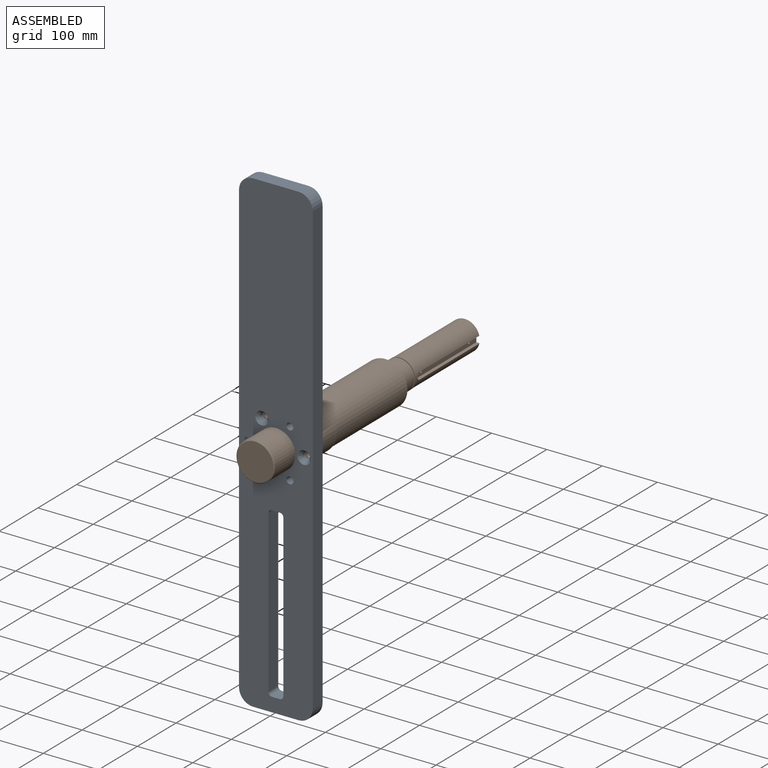
[diagram: assembled view]
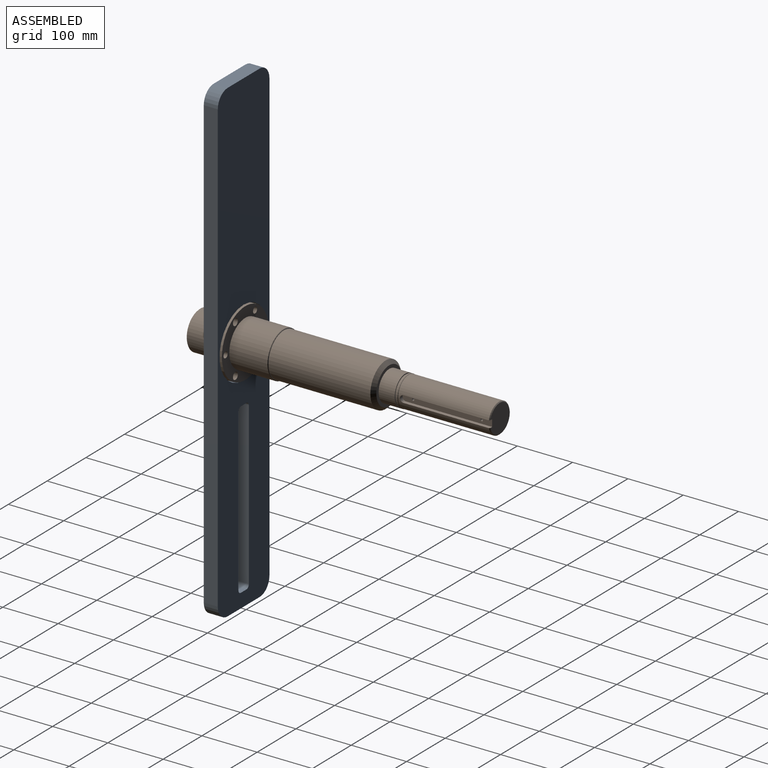
[diagram: assembled view, second angle]
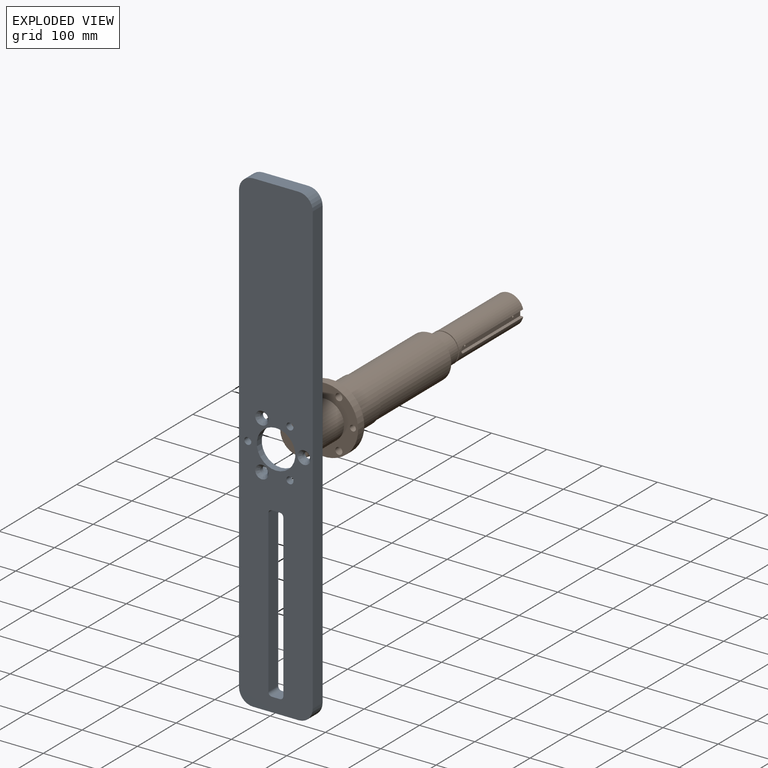
[diagram: exploded view]
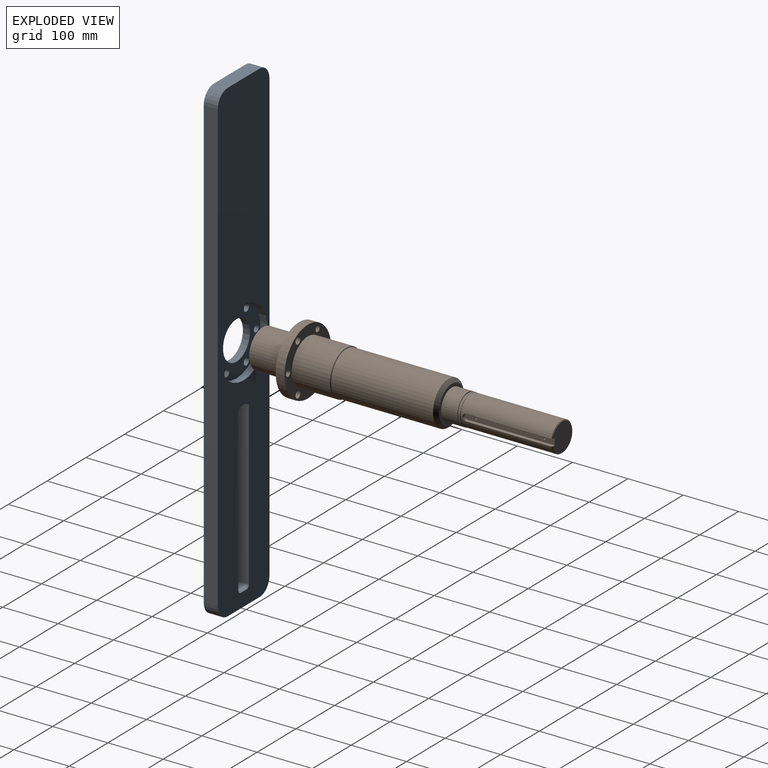
[diagram: exploded view, second angle]
ASSEMBLY  parts=2 mates=2
PART A: 30 faces, bbox 133.4x25.4x863.6 mm
  f0: cylinder r=6.35mm len=25.4mm, axis (0,1,0), area 253.4mm2, adj f1,f15,f16,f17
  f1: plane 25.4x14.22mm, normal (0,0,-1), area 361.3mm2, adj f0,f2,f16,f17
  f2: cylinder r=6.35mm len=25.4mm, axis (0,1,0), area 253.4mm2, adj f1,f3,f16,f17
  f3: plane 292.1x25.4mm, normal (-1,0,0), area 7419.3mm2, adj f2,f4,f16,f17
  f4: cylinder r=6.35mm len=25.4mm, axis (0,1,0), area 253.4mm2, adj f3,f5,f16,f17
  f5: plane 25.4x14.22mm, normal (0,0,1), area 361.3mm2, adj f4,f6,f16,f17
  f6: cylinder r=6.35mm len=25.4mm, axis (0,1,0), area 253.4mm2, adj f5,f15,f16,f17
  f7: plane 812.8x25.4mm, normal (-1,0,0), area 20645.1mm2, adj f8,f14,f16,f17
  f8: cylinder r=25.4mm len=25.4mm, axis (0,1,0), area 1013.4mm2, adj f7,f9,f16,f17
  f9: plane 82.55x25.4mm, normal (0,0,-1), area 2096.8mm2, adj f8,f10,f16,f17
  f10: cylinder r=25.4mm len=25.4mm, axis (0,1,0), area 1013.4mm2, adj f9,f11,f16,f17
  f11: plane 812.8x25.4mm, normal (1,0,0), area 20645.1mm2, adj f10,f12,f16,f17
  f12: cylinder r=25.4mm len=25.4mm, axis (0,1,0), area 1013.4mm2, adj f11,f13,f16,f17
  f13: plane 82.55x25.4mm, normal (0,0,1), area 2096.8mm2, adj f12,f14,f16,f17
  f14: cylinder r=25.4mm len=25.4mm, axis (0,1,0), area 1013.4mm2, adj f7,f13,f16,f17
  f15: plane 292.1x25.4mm, normal (1,0,0), area 7419.3mm2, adj f0,f6,f16,f17
  f16: plane 863.6x133.35mm, normal (0,-1,0), area 100899.9mm2, adj f0,f1,f2,f3,f4,f5,f6,f7
  f17: plane 863.6x133.35mm, normal (0,1,0), area 94393.2mm2, adj f0,f1,f2,f3,f4,f5,f6,f7
  f18: cylinder r=6.75mm len=13.49mm, axis (0,-1,0), area 286.4mm2, adj f19,f28
  f19: cone r=6.75mm half-angle=41deg, axis (0,-1,0), area 461.6mm2, adj f16,f18
  f20: cylinder r=6.75mm len=13.49mm, axis (0,-1,0), area 286.4mm2, adj f21,f28
  f21: cone r=6.75mm half-angle=41deg, axis (0,-1,0), area 461.6mm2, adj f16,f20
  f22: cylinder r=6.75mm len=13.49mm, axis (0,-1,0), area 286.4mm2, adj f23,f28
  f23: cone r=6.75mm half-angle=41deg, axis (0,-1,0), area 461.6mm2, adj f16,f22
  f24: cylinder r=6.35mm len=12.7mm, axis (0,-1,0), area 506.7mm2, adj f16,f28
  f25: cylinder r=6.35mm len=12.7mm, axis (0,-1,0), area 506.7mm2, adj f16,f28
  f26: cylinder r=6.35mm len=12.7mm, axis (0,-1,0), area 506.7mm2, adj f16,f28
  f27: cylinder r=61.91mm len=123.83mm, axis (0,1,0), area 4940.4mm2, adj f17,f28
  f28: plane 123.83x123.83mm, normal (0,1,0), area 7415.2mm2, adj f18,f20,f22,f24,f25,f26,f27,f29
  f29: cylinder r=34.86mm len=69.72mm, axis (0,1,0), area 2781.8mm2, adj f16,f28
PART B: 35 faces, bbox 120.7x542.9x120.7 mm
  f0: cylinder r=27.5mm len=54.99mm, axis (0,-1,0), area 5033.1mm2, adj f2,f19
  f1: cylinder r=39.69mm len=184.15mm, axis (0,-1,0), area 45920.4mm2, adj f4,f11
  f2: plane 66.68x66.68mm, normal (0,1,0), area 1116.5mm2, adj f0,f11
  f3: cylinder r=41.25mm len=82.5mm, axis (0,-1,0), area 17906.2mm2, adj f9,f33
  f4: plane 80.98x80.98mm, normal (0,1,0), area 201.5mm2, adj f1,f33
  f5: plane 66.55x66.55mm, normal (0,-1,0), area 3478.2mm2, adj f10
  f6: cylinder r=34.8mm len=69.6mm, axis (0,1,0), area 14244.8mm2, adj f7,f10
  f7: plane 120.65x120.65mm, normal (0,-1,0), area 6977.8mm2, adj f6,f8,f12,f13,f14,f15,f16,f17
  f8: cylinder r=60.32mm len=120.65mm, axis (0,1,0), area 6017.2mm2, adj f7,f9
  f9: plane 120.65x120.65mm, normal (0,1,0), area 5436.5mm2, adj f3,f8,f12,f13,f14,f15,f16,f17
  f10: cone r=33.27mm half-angle=45deg, axis (0,1,0), area 460.9mm2, adj f5,f6
  f11: cone r=39.69mm half-angle=45deg, axis (0,-1,0), area 2060.2mm2, adj f1,f2
  f12: cylinder r=6.35mm len=15.88mm, axis (0,-1,0), area 633.4mm2, adj f7,f9
  f13: cylinder r=6.35mm len=15.88mm, axis (0,-1,0), area 633.4mm2, adj f7,f9
  f14: cylinder r=6.35mm len=15.88mm, axis (0,-1,0), area 633.4mm2, adj f7,f9
  f15: cylinder r=5.36mm len=15.88mm, axis (0,-1,0), area 534.4mm2, adj f7,f9
  f16: cylinder r=5.36mm len=15.88mm, axis (0,-1,0), area 534.4mm2, adj f7,f9
  f17: cylinder r=5.36mm len=15.88mm, axis (0,-1,0), area 534.4mm2, adj f7,f9
  f18: plane 54.99x54.99mm, normal (0,-1,0), area 264.3mm2, adj f20,f28
  f19: plane 54.99x54.99mm, normal (0,1,0), area 264.3mm2, adj f0,f20
  f20: cylinder r=25.92mm len=51.84mm, axis (0,1,0), area 355.8mm2, adj f18,f19
  f21: plane 50.93x50.12mm, normal (0,1,0), area 1969.4mm2, adj f22,f24,f25,f26
  f22: plane 161.93x12.7mm, normal (0,0,1), area 2013.5mm2, adj f21,f23,f24,f26,f30,f32
  f23: cylinder r=6.35mm len=12.7mm, axis (0,0,1), area 134.3mm2, adj f22,f24,f26,f27
  f24: plane 155.59x6.37mm, normal (-1,0,0), area 987.4mm2, adj f21,f22,f23,f25,f27
  f25: cone r=26.99mm half-angle=45deg, axis (0,-1,0), area 327.5mm2, adj f21,f24,f26,f27
  f26: plane 155.59x6.37mm, normal (1,0,0), area 987.4mm2, adj f21,f22,f23,f25,f27
  f27: cylinder r=26.99mm len=163.58mm, axis (0,-1,0), area 25698.4mm2, adj f23,f24,f25,f26,f34
  f28: cylinder r=27.5mm len=54.99mm, axis (0,-1,0), area 535.3mm2, adj f18,f34
  f29: cone r=0mm half-angle=59deg, axis (0,0,1), area 14.9mm2, adj f30
  f30: cylinder r=2.02mm len=27.78mm, axis (0,0,1), area 352.5mm2, adj f22,f29
  f31: cone r=0mm half-angle=59deg, axis (0,0,1), area 14.9mm2, adj f32
  f32: cylinder r=2.02mm len=27.78mm, axis (0,0,1), area 352.5mm2, adj f22,f31
  f33: cone r=41.25mm half-angle=45deg, axis (0,-1,0), area 276.7mm2, adj f3,f4
  f34: cone r=27.5mm half-angle=45deg, axis (0,-1,0), area 123mm2, adj f27,f28
PLACE A t=(212.84,-89.81,-24.43)mm
PLACE B rot(axis=(0,1,0),90deg) t=(-78.61,-86.63,-24.43)mm
MATE planar B.f8 <-> A.f28  axis (0,-1,0) through (-78.61,-102.51,-24.43)mm
MATE cylindrical B.f8 <-> A.f29  axis (0,-1,0) through (-78.61,-102.51,-24.43)mm
